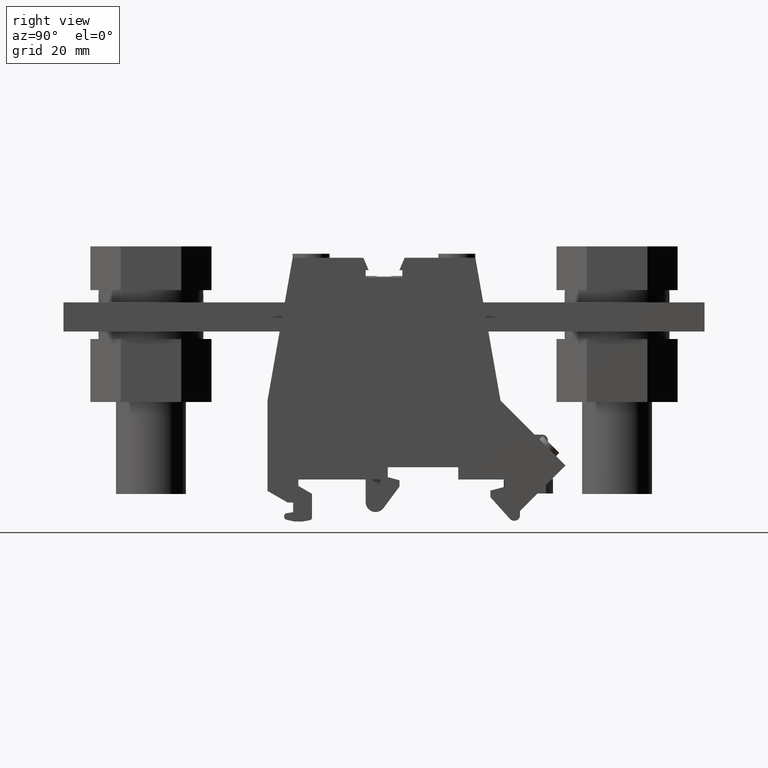
[diagram: clean part render]
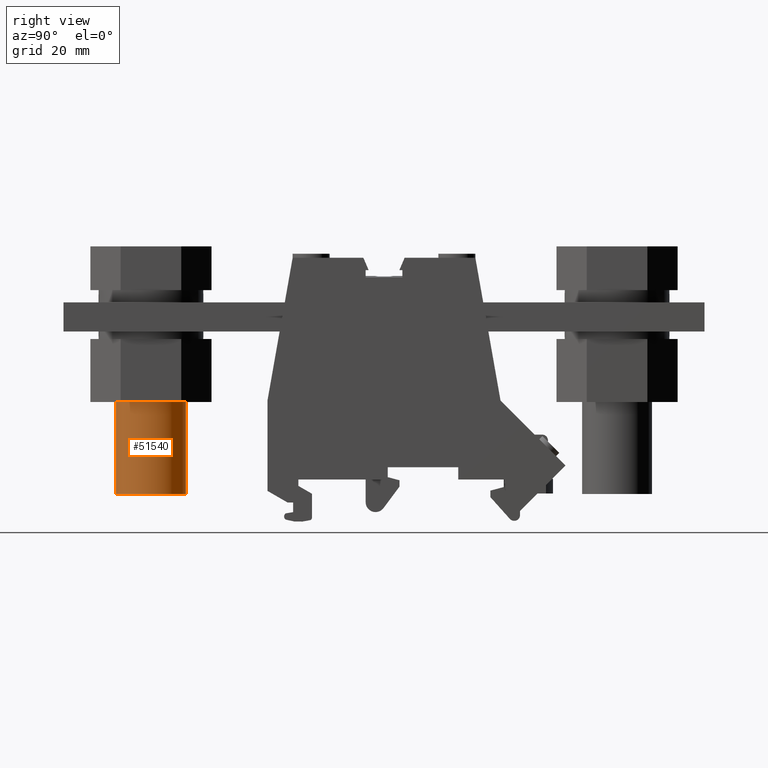
[diagram: same view with one face highlighted and labeled with its STEP entity id]
A machine part, right view. The second image highlights one B-rep face of the part: STEP entity #51540.
In plain terms, the highlighted cylindrical surface (edge-blend (fillet) strip) has radius 6 mm, axis along (0, 0, 1).
Its self-contained STEP definition (entity closure, byte-faithful):
#17470=CARTESIAN_POINT('',(-65.3083182342031,388.824378044622,21.5));
#17480=DIRECTION('',(0.,1.,0.));
#17490=VECTOR('',#17480,1.);
#17500=LINE('',#17470,#17490);
#17510=CARTESIAN_POINT('',(-65.3083182342031,373.024378044622,21.5));
#17520=VERTEX_POINT('',#17510);
#17530=CARTESIAN_POINT('',(-65.3083182342031,388.824378044622,21.5));
#17540=VERTEX_POINT('',#17530);
#17550=EDGE_CURVE('',#17520,#17540,#17500,.T.);
#17570=CARTESIAN_POINT('',(-59.3083182342031,388.824378044622,21.5));
#17580=DIRECTION('',(0.,1.,0.));
#17590=DIRECTION('',(1.,0.,0.));
#17600=AXIS2_PLACEMENT_3D('',#17570,#17580,#17590);
#17610=CIRCLE('',#17600,6.);
#17620=CARTESIAN_POINT('',(-53.3083182342031,388.824378044622,21.5));
#17630=VERTEX_POINT('',#17620);
#17660=CARTESIAN_POINT('',(-53.3083182342031,388.824378044622,21.5));
#17670=DIRECTION('',(0.,1.,0.));
#17680=VECTOR('',#17670,1.);
#17690=LINE('',#17660,#17680);
#17700=CARTESIAN_POINT('',(-53.3083182342031,373.024378044622,21.5));
#17710=VERTEX_POINT('',#17700);
#17720=EDGE_CURVE('',#17710,#17630,#17690,.T.);
#17740=CARTESIAN_POINT('',(-59.3083182342031,373.024378044622,21.5));
#17750=DIRECTION('',(0.,1.,0.));
#17760=DIRECTION('',(1.,0.,0.));
#17770=AXIS2_PLACEMENT_3D('',#17740,#17750,#17760);
#17780=CIRCLE('',#17770,6.);
#41580=EDGE_CURVE('',#17710,#17520,#17780,.T.);
#50890=EDGE_CURVE('',#17630,#17540,#17610,.T.);
#51430=CARTESIAN_POINT('',(-59.3083182342031,388.824378044622,21.5));
#51440=DIRECTION('',(0.,1.,0.));
#51450=DIRECTION('',(1.,0.,0.));
#51460=AXIS2_PLACEMENT_3D('',#51430,#51440,#51450);
#51470=CYLINDRICAL_SURFACE('',#51460,6.);
#51480=ORIENTED_EDGE('',*,*,#50890,.F.);
#51490=ORIENTED_EDGE('',*,*,#17550,.T.);
#51500=ORIENTED_EDGE('',*,*,#41580,.T.);
#51510=ORIENTED_EDGE('',*,*,#17720,.F.);
#51520=EDGE_LOOP('',(#51510,#51500,#51490,#51480));
#51530=FACE_OUTER_BOUND('',#51520,.T.);
#51540=ADVANCED_FACE('',(#51530),#51470,.T.);